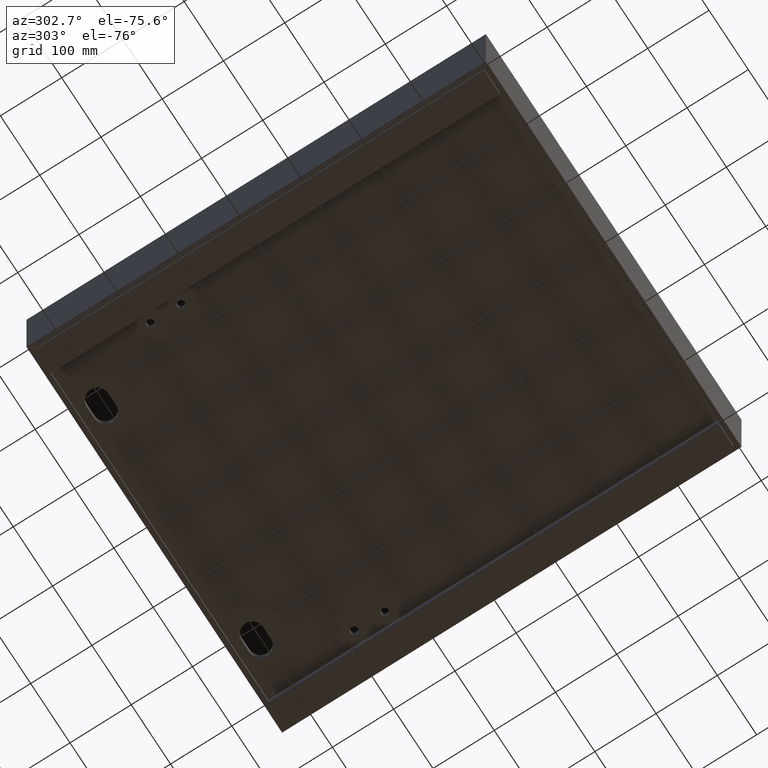
[diagram: clean part render]
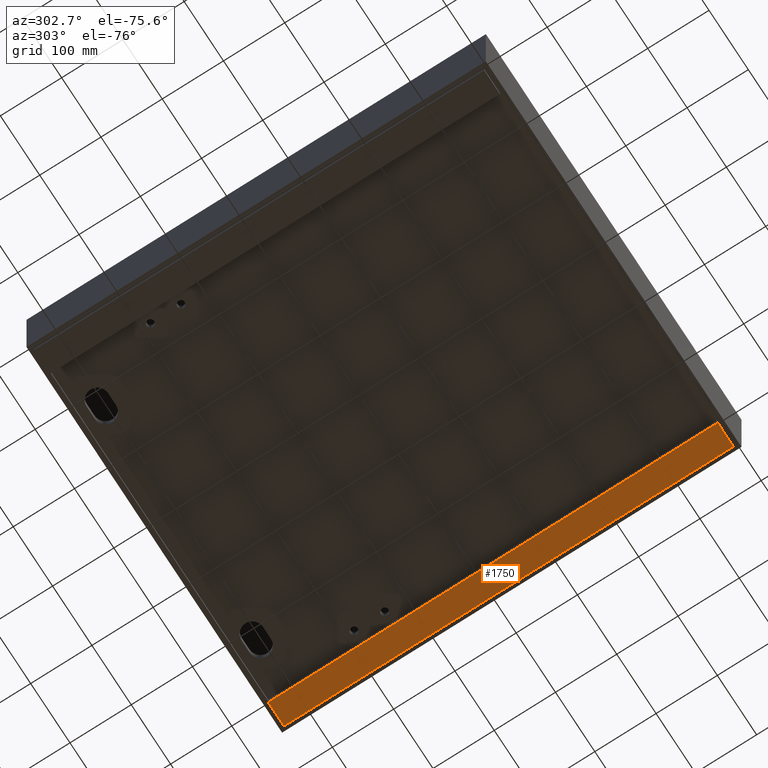
[diagram: same view with one face highlighted and labeled with its STEP entity id]
A machine part, auxiliary view. The second image highlights one B-rep face of the part: STEP entity #1750.
In plain terms, the highlighted planar face has unit normal (0, 0, -1).
Its self-contained STEP definition (entity closure, byte-faithful):
#146 = DIRECTION ( 'NONE',  ( -1.000000000000000000, 6.698108945001927909E-50, 0.0000000000000000000 ) ) ;
#580 = DIRECTION ( 'NONE',  ( -1.000000000000000000, 6.698108945001927909E-50, 0.0000000000000000000 ) ) ;
#636 = VECTOR ( 'NONE', #8825, 1000.000000000000000 ) ;
#883 = PLANE ( 'NONE',  #7890 ) ;
#1200 = DIRECTION ( 'NONE',  ( -1.512565634716239722E-16, -1.000000000000000000, -3.634960005725386079E-49 ) ) ;
#1557 = CARTESIAN_POINT ( 'NONE',  ( 642.0000000000000000, 8.000000000000007105, -157.0000000000003126 ) ) ;
#1750 = ADVANCED_FACE ( 'NONE', ( #7504 ), #883, .T. ) ;
#2571 = VERTEX_POINT ( 'NONE', #1557 ) ;
#2841 = CARTESIAN_POINT ( 'NONE',  ( 602.0000000000002274, 741.9999000000000251, -157.0000000000003126 ) ) ;
#2947 = LINE ( 'NONE', #5883, #636 ) ;
#3155 = VECTOR ( 'NONE', #580, 1000.000000000000000 ) ;
#3432 = ORIENTED_EDGE ( 'NONE', *, *, #8001, .T. ) ;
#3655 = CARTESIAN_POINT ( 'NONE',  ( 602.0000000000001137, 8.000000000000007105, -157.0000000000003126 ) ) ;
#3875 = CARTESIAN_POINT ( 'NONE',  ( 0.0000000000000000000, 0.0000000000000000000, -157.0000000000003126 ) ) ;
#4209 = EDGE_LOOP ( 'NONE', ( #5691, #5130, #5046, #3432 ) ) ;
#4304 = LINE ( 'NONE', #7206, #3155 ) ;
#4330 = EDGE_CURVE ( 'NONE', #2571, #8780, #4304, .T. ) ;
#4914 = LINE ( 'NONE', #7829, #5930 ) ;
#5046 = ORIENTED_EDGE ( 'NONE', *, *, #7059, .T. ) ;
#5130 = ORIENTED_EDGE ( 'NONE', *, *, #4330, .T. ) ;
#5223 = CARTESIAN_POINT ( 'NONE',  ( 642.0000000000001137, 741.9999000000000251, -157.0000000000003126 ) ) ;
#5436 = CARTESIAN_POINT ( 'NONE',  ( 602.0000000000002274, 741.9999000000000251, -157.0000000000003126 ) ) ;
#5691 = ORIENTED_EDGE ( 'NONE', *, *, #5858, .T. ) ;
#5737 = VERTEX_POINT ( 'NONE', #5436 ) ;
#5783 = DIRECTION ( 'NONE',  ( 1.512565634716239722E-16, 1.000000000000000000, 3.634960005725386079E-49 ) ) ;
#5858 = EDGE_CURVE ( 'NONE', #9290, #2571, #4914, .T. ) ;
#5883 = CARTESIAN_POINT ( 'NONE',  ( 642.0000000000001137, 741.9999000000000251, -157.0000000000003126 ) ) ;
#5930 = VECTOR ( 'NONE', #1200, 1000.000000000000000 ) ;
#6187 = VECTOR ( 'NONE', #5783, 1000.000000000000000 ) ;
#6786 = DIRECTION ( 'NONE',  ( 0.0000000000000000000, 0.0000000000000000000, -1.000000000000000000 ) ) ;
#7059 = EDGE_CURVE ( 'NONE', #8780, #5737, #9447, .T. ) ;
#7206 = CARTESIAN_POINT ( 'NONE',  ( 642.0000000000000000, 8.000000000000007105, -157.0000000000003126 ) ) ;
#7504 = FACE_OUTER_BOUND ( 'NONE', #4209, .T. ) ;
#7829 = CARTESIAN_POINT ( 'NONE',  ( 642.0000000000001137, 741.9999000000000251, -157.0000000000003126 ) ) ;
#7890 = AXIS2_PLACEMENT_3D ( 'NONE', #3875, #6786, #146 ) ;
#8001 = EDGE_CURVE ( 'NONE', #5737, #9290, #2947, .T. ) ;
#8780 = VERTEX_POINT ( 'NONE', #3655 ) ;
#8825 = DIRECTION ( 'NONE',  ( 1.000000000000000000, -6.698108945001927909E-50, 0.0000000000000000000 ) ) ;
#9290 = VERTEX_POINT ( 'NONE', #5223 ) ;
#9447 = LINE ( 'NONE', #2841, #6187 ) ;